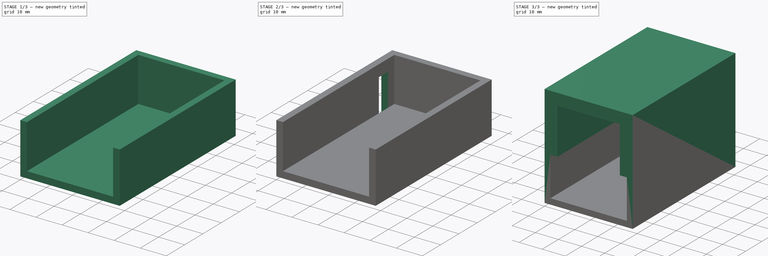
[diagram: build sequence overview — one tinted view per stage of 3, left to right]
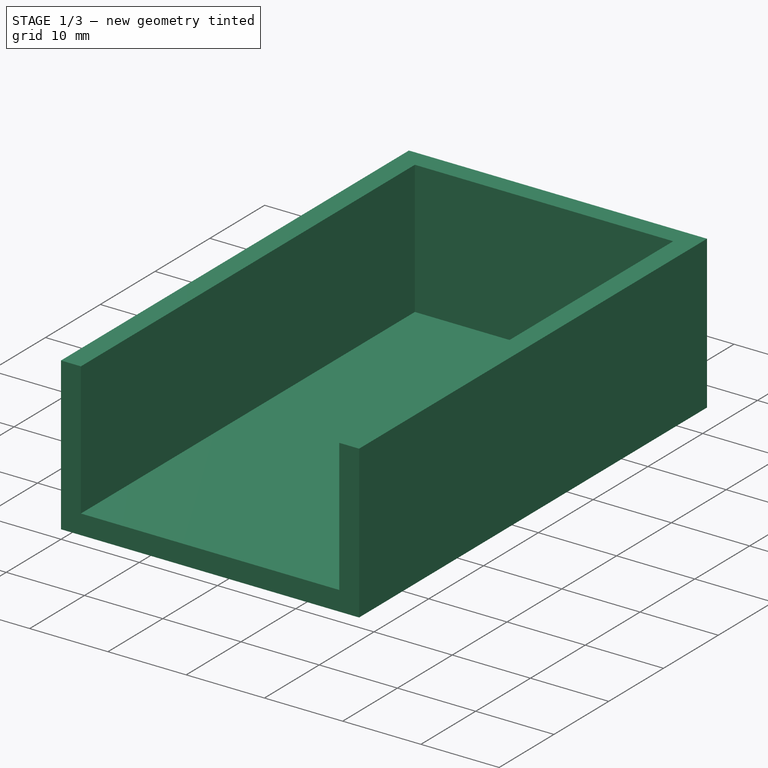
[diagram: stage 1 of 3 — iso view after this stage's code; geometry added in this stage tinted green]
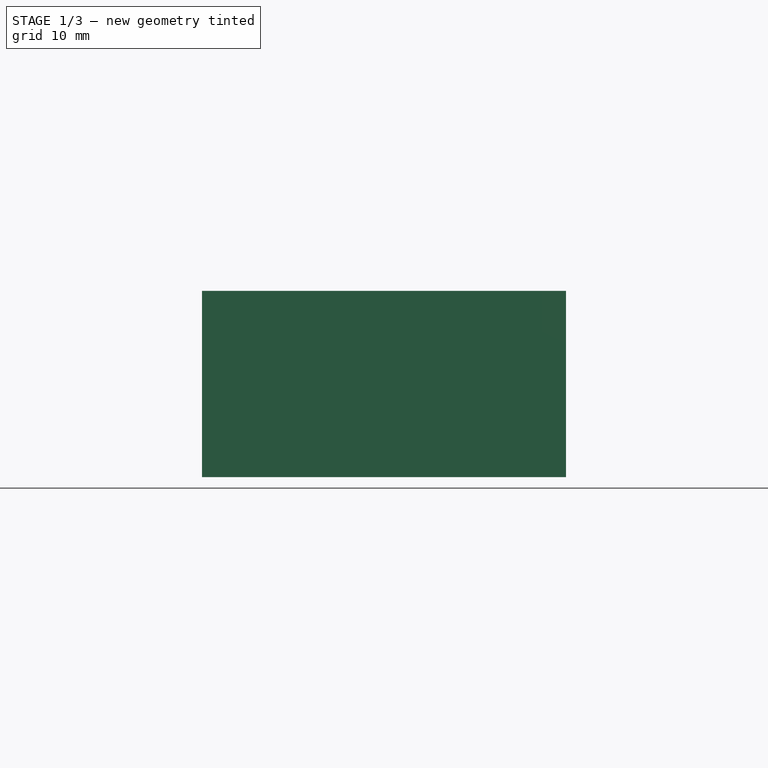
[diagram: stage 1 of 3 — front view after this stage's code; geometry added in this stage tinted green]
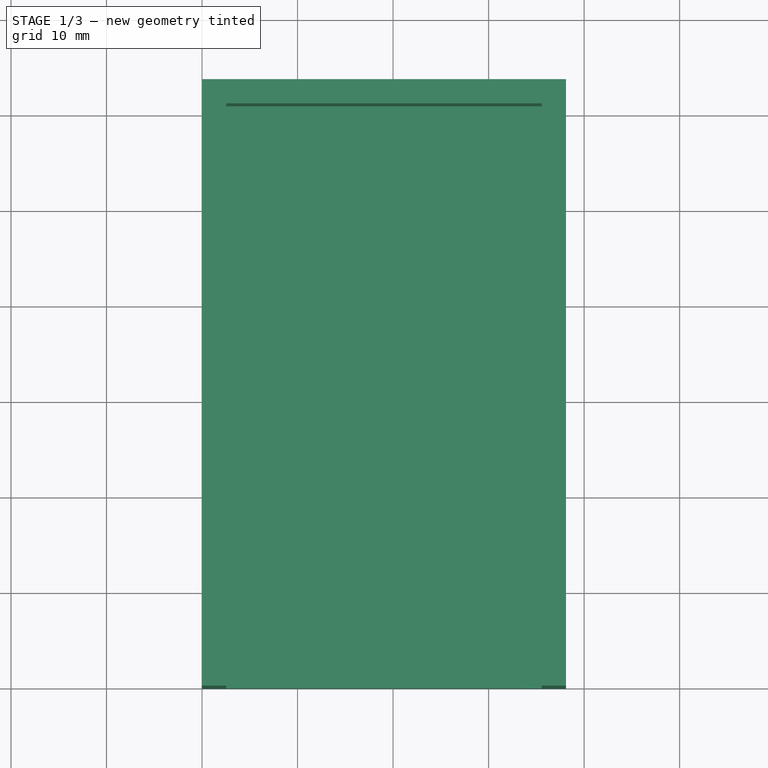
[diagram: stage 1 of 3 — top view after this stage's code; geometry added in this stage tinted green]
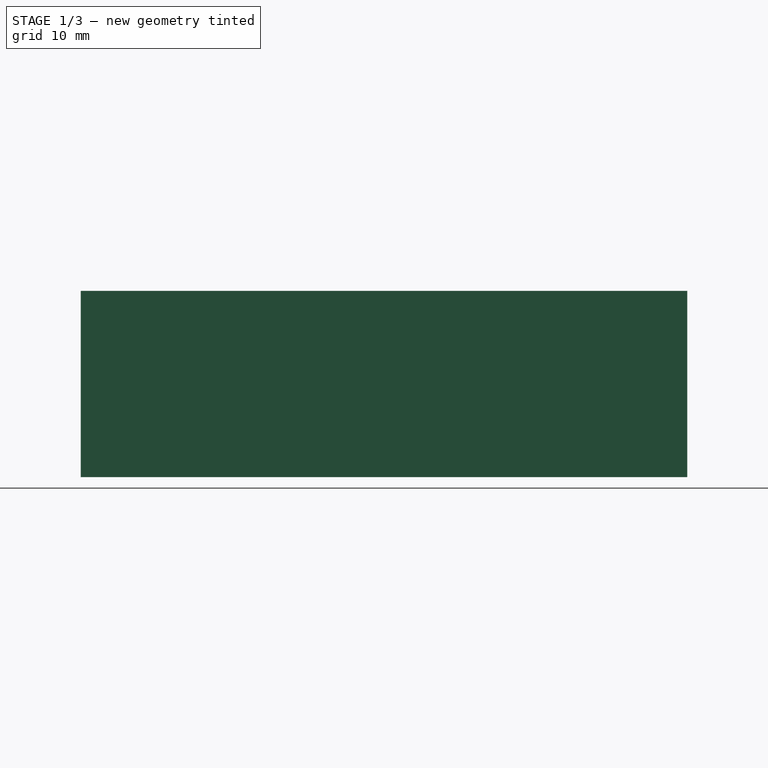
[diagram: stage 1 of 3 — right view after this stage's code; geometry added in this stage tinted green]
FCSTD DOCUMENT  (FreeCAD 1.0R39109 (Git))
Label: Battery Case
License: All rights reserved
LicenseURL: https://en.wikipedia.org/wiki/All_rights_reserved
objects: Sketcher::SketchObject×5, PartDesign::Pad×4, PartDesign::Pocket×1, PartDesign::Body×1
note: 26 computed .brp shape members not serialized (recipe doc carries the construction recipe); baked Part::Feature solids carry a one-line shape summary decoded from their .brp

FEATURE [Sketcher::SketchObject] Sketch
  ArcFitTolerance = 1e-06
  AttachmentSupport = -> [XY_Plane]
  FullyConstrained = true
  MakeInternals = false
  MapMode = 5
  sketch-geometry (4):
    g0: LineSegment StartX=0 StartY=0 StartZ=0 EndX=38.1 EndY=0 EndZ=0
    g1: LineSegment StartX=38.1 StartY=0 StartZ=0 EndX=38.1 EndY=63.5 EndZ=0
    g2: LineSegment StartX=38.1 StartY=63.5 StartZ=0 EndX=0 EndY=63.5 EndZ=0
    g3: LineSegment StartX=0 StartY=63.5 StartZ=0 EndX=0 EndY=0 EndZ=0
  constraints (11):
    c: Coincident(g0,g1)
    c: Coincident(g1,g2)
    c: Coincident(g2,g3)
    c: Coincident(g3,g0)
    c: Horizontal(g0)
    c: Horizontal(g2)
    c: Vertical(g1)
    c: Vertical(g3)
    c: Distance(g1,g3) = 38.1
    c: Distance(g0,g2) = 63.5
    c: Coincident(g0,g-1)
FEATURE [PartDesign::Pad] Pad
  Direction = (0,0,1)
  Length = 2.5
  Length2 = 10
  Profile = -> Sketch
  ReferenceAxis = -> Sketch [N_Axis]
  Refine = true
  Suppressed = false
  Type = 0
FEATURE [Sketcher::SketchObject] Sketch001
  ArcFitTolerance = 1e-06
  AttachmentSupport = -> [Pad]
  FullyConstrained = true
  MakeInternals = false
  MapMode = 5
  Placement = pos=(0,0,2.5) rot=(0,0,1;0rad)
  sketch-geometry (8):
    g0: LineSegment StartX=0 StartY=0 StartZ=0 EndX=0 EndY=63.5 EndZ=0
    g1: LineSegment StartX=0 StartY=63.5 StartZ=0 EndX=38.1 EndY=63.5 EndZ=0
    g2: LineSegment StartX=38.1 StartY=63.5 StartZ=0 EndX=38.1 EndY=0 EndZ=0
    g3: LineSegment StartX=38.1 StartY=0 StartZ=0 EndX=35.56 EndY=0 EndZ=0
    g4: LineSegment StartX=35.56 StartY=0 StartZ=0 EndX=35.56 EndY=60.96 EndZ=0
    g5: LineSegment StartX=35.56 StartY=60.96 StartZ=0 EndX=2.54 EndY=60.96 EndZ=0
    g6: LineSegment StartX=2.54 StartY=60.96 StartZ=0 EndX=2.54 EndY=0 EndZ=0
    g7: LineSegment StartX=2.54 StartY=0 StartZ=0 EndX=0 EndY=0 EndZ=0
  constraints (23):
    c: Distance(g0) = 63.5
    c: Coincident(g0,g-1)
    c: PointOnObject(g0,g-2)
    c: Distance(g1) = 38.1
    c: Coincident(g1,g0)
    c: Horizontal(g1)
    c: Coincident(g2,g1)
    c: PointOnObject(g2,g-1)
    c: Vertical(g2)
    c: Distance(g3) = 2.54
    c: Coincident(g3,g2)
    c: PointOnObject(g3,g-1)
    c: Distance(g4) = 60.96
    c: Coincident(g4,g3)
    c: Vertical(g4)
    c: Distance(g5) = 33.02
    c: Coincident(g5,g4)
    c: Horizontal(g5)
    c: Coincident(g6,g5)
    c: PointOnObject(g6,g-1)
    c: Vertical(g6)
    c: Coincident(g7,g6)
    c: Coincident(g7,g0)
FEATURE [PartDesign::Pad] Pad001
  BaseFeature = -> Pad
  Direction = (0,0,1)
  Length = 17
  Length2 = 10
  Profile = -> Sketch001
  ReferenceAxis = -> Sketch001 [N_Axis]
  Refine = true
  Suppressed = false
  Type = 0
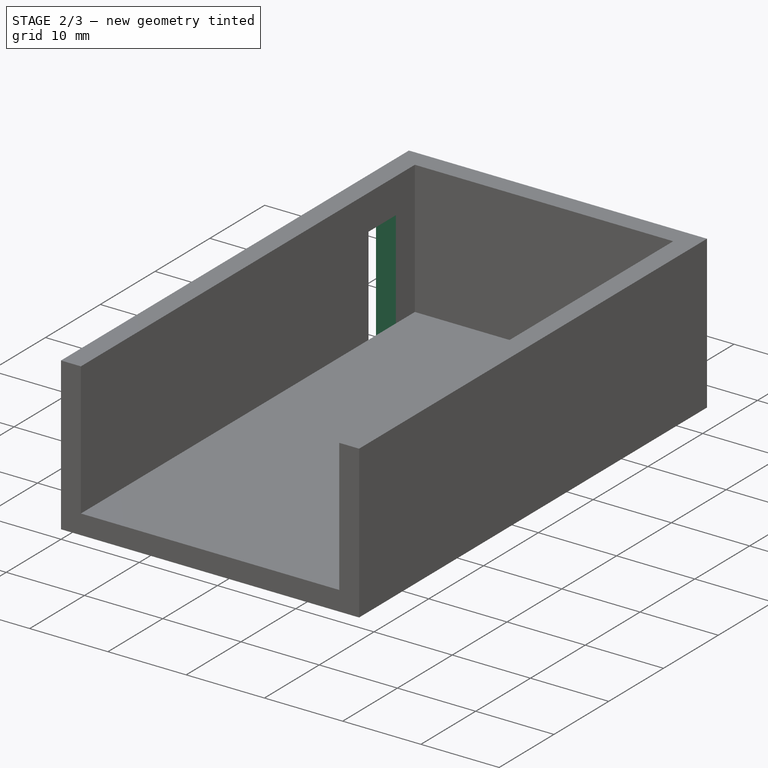
[diagram: stage 2 of 3 — iso view after this stage's code; geometry added in this stage tinted green]
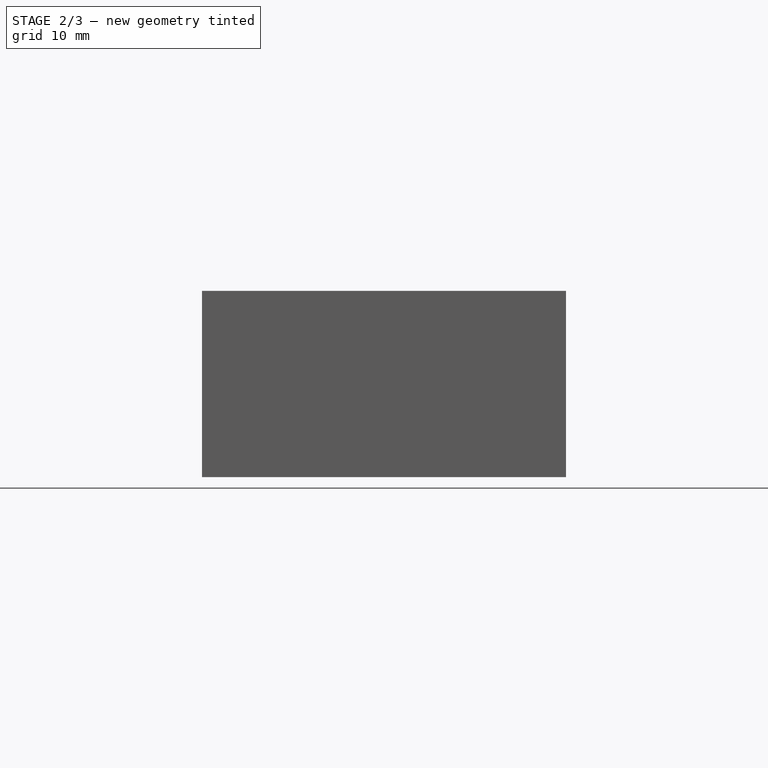
[diagram: stage 2 of 3 — front view after this stage's code; geometry added in this stage tinted green]
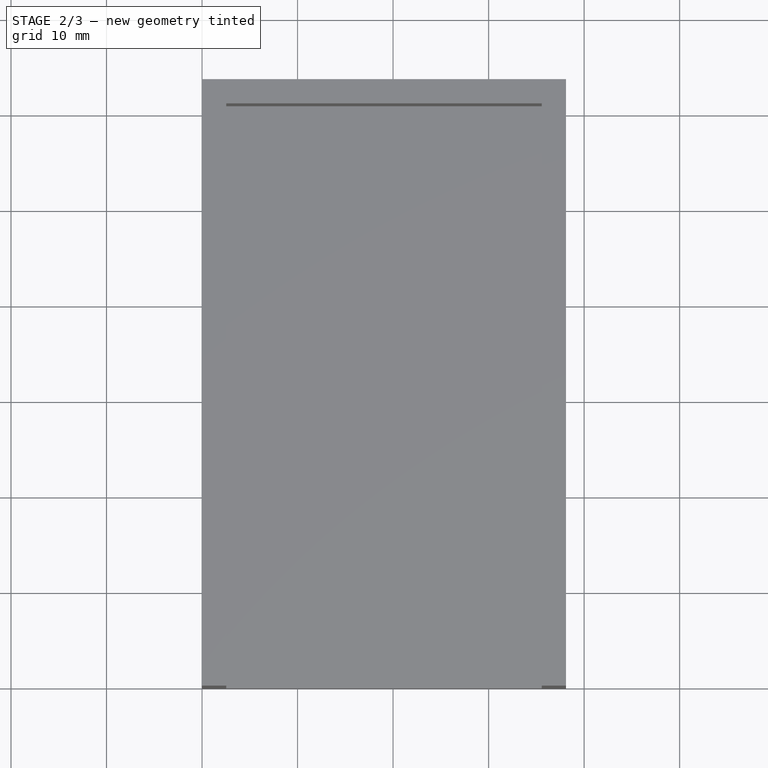
[diagram: stage 2 of 3 — top view after this stage's code; geometry added in this stage tinted green]
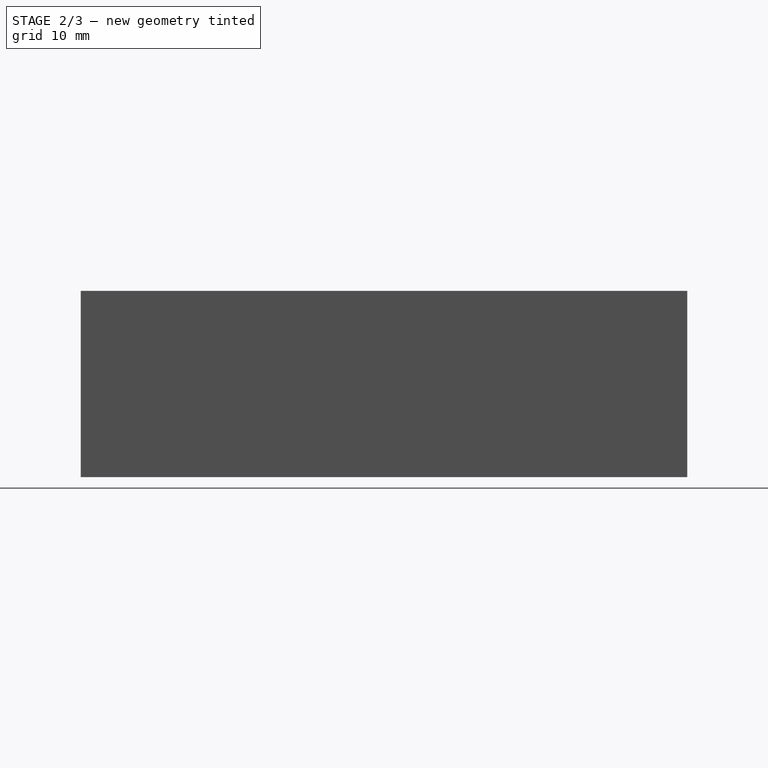
[diagram: stage 2 of 3 — right view after this stage's code; geometry added in this stage tinted green]
FEATURE [Sketcher::SketchObject] Sketch002
  ArcFitTolerance = 1e-06
  AttachmentSupport = -> [Pad001]
  FullyConstrained = true
  MakeInternals = false
  MapMode = 5
  Placement = pos=(0,0,0) rot=(0.57735,-0.57735,-0.57735;2.0944rad)
  sketch-geometry (4):
    g0: LineSegment StartX=-52.5 StartY=0 StartZ=0 EndX=-52.5 EndY=15 EndZ=0
    g1: LineSegment StartX=-52.5 StartY=15 StartZ=0 EndX=-57.5 EndY=15 EndZ=0
    g2: LineSegment StartX=-57.5 StartY=15 StartZ=0 EndX=-57.5 EndY=0 EndZ=0
    g3: LineSegment StartX=-57.5 StartY=0 StartZ=0 EndX=-52.5 EndY=0 EndZ=0
  constraints (12):
    c: Coincident(g0,g1)
    c: Coincident(g1,g2)
    c: Coincident(g2,g3)
    c: Coincident(g3,g0)
    c: Vertical(g0)
    c: Vertical(g2)
    c: Horizontal(g1)
    c: Horizontal(g3)
    c: PointOnObject(g0,g-1)
    c: Distance(g-2,g0) = 52.5
    c: DistanceX(g3,g3) = 5
    c: DistanceY(g0,g0) = 15
FEATURE [PartDesign::Pocket] Pocket
  BaseFeature = -> Pad001
  Direction = (1,0,0)
  Length = 2.54
  Length2 = 5
  Profile = -> Sketch002
  ReferenceAxis = -> Sketch002 [N_Axis]
  Refine = true
  Suppressed = false
  Type = 0
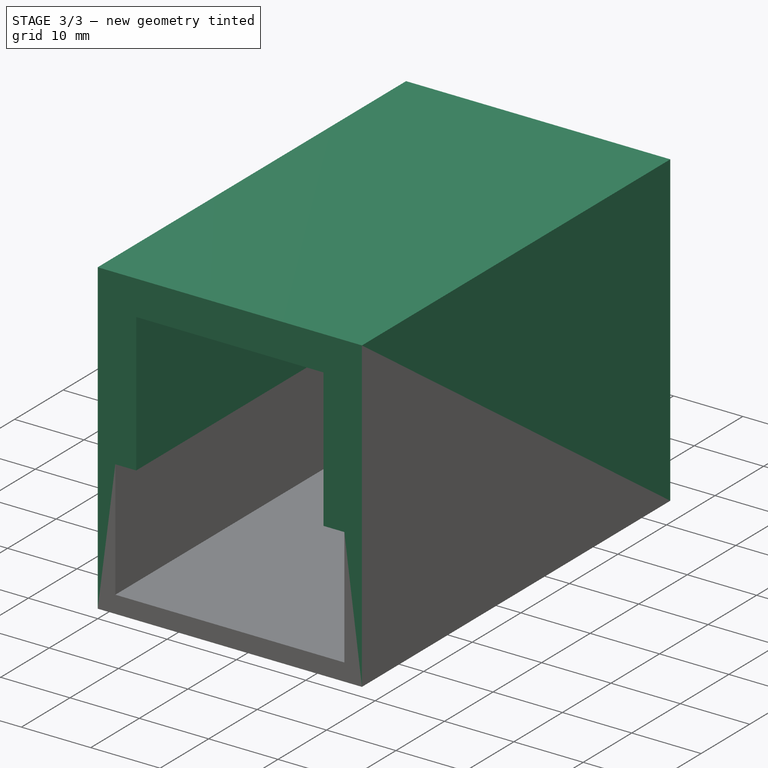
[diagram: stage 3 of 3 — iso view after this stage's code; geometry added in this stage tinted green]
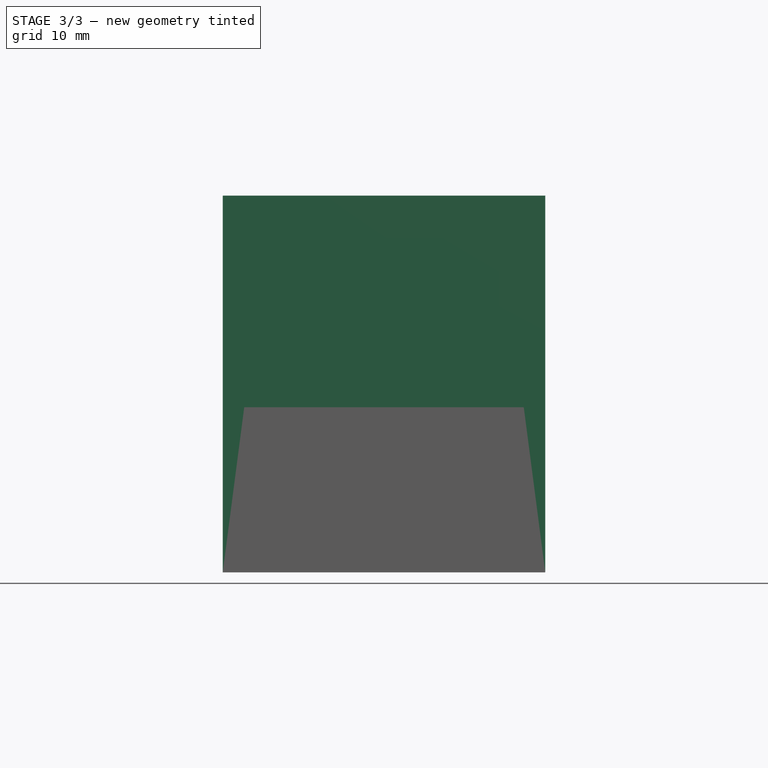
[diagram: stage 3 of 3 — front view after this stage's code; geometry added in this stage tinted green]
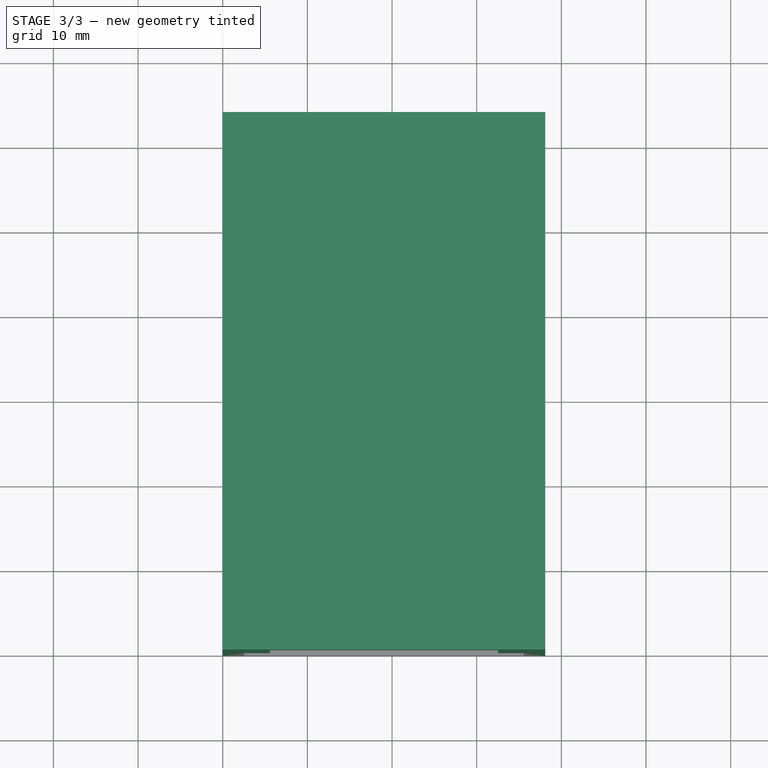
[diagram: stage 3 of 3 — top view after this stage's code; geometry added in this stage tinted green]
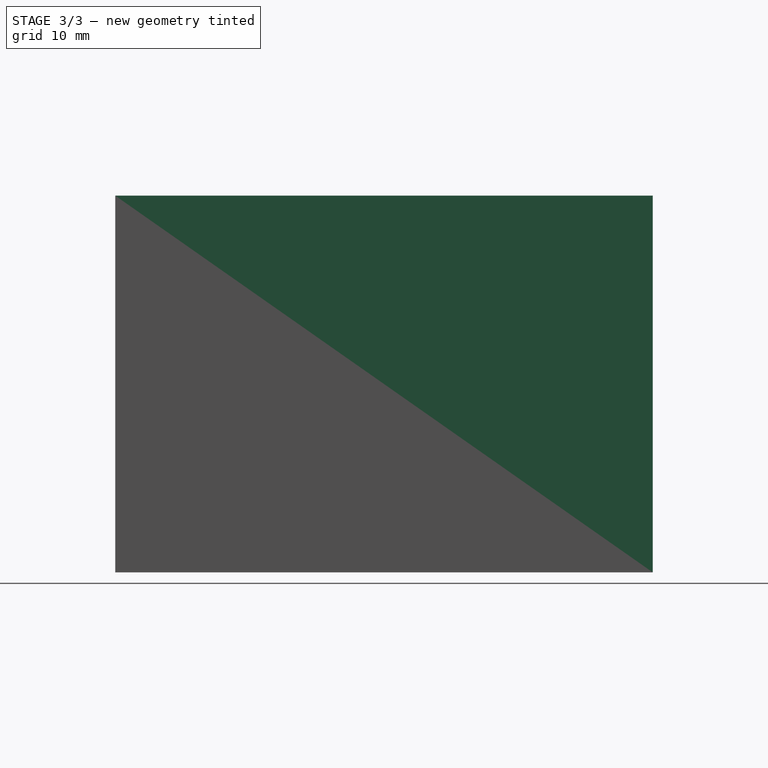
[diagram: stage 3 of 3 — right view after this stage's code; geometry added in this stage tinted green]
FEATURE [Sketcher::SketchObject] Sketch003
  ArcFitTolerance = 1e-06
  AttachmentSupport = -> [Pocket]
  FullyConstrained = true
  MakeInternals = false
  MapMode = 5
  Placement = pos=(0,0,19.5) rot=(0,0,1;0rad)
  sketch-geometry (8):
    g0: LineSegment StartX=0 StartY=0 StartZ=0 EndX=5.55 EndY=0 EndZ=0
    g1: LineSegment StartX=5.55 StartY=0 StartZ=0 EndX=5.55 EndY=55.5 EndZ=0
    g2: LineSegment StartX=5.55 StartY=55.5 StartZ=0 EndX=32.55 EndY=55.5 EndZ=0
    g3: LineSegment StartX=32.55 StartY=55.5 StartZ=0 EndX=32.55 EndY=0 EndZ=0
    g4: LineSegment StartX=32.55 StartY=0 StartZ=0 EndX=38.1 EndY=0 EndZ=0
    g5: LineSegment StartX=38.1 StartY=0 StartZ=0 EndX=38.1 EndY=63.5 EndZ=0
    g6: LineSegment StartX=38.1 StartY=63.5 StartZ=0 EndX=0 EndY=63.5 EndZ=0
    g7: LineSegment StartX=0 StartY=63.5 StartZ=0 EndX=0 EndY=0 EndZ=0
  constraints (23):
    c: Distance(g0) = 5.55
    c: Coincident(g0,g-1)
    c: PointOnObject(g0,g-1)
    c: Distance(g1) = 55.5
    c: Coincident(g1,g0)
    c: Vertical(g1)
    c: Distance(g2) = 27
    c: Coincident(g2,g1)
    c: Horizontal(g2)
    c: Coincident(g3,g2)
    c: PointOnObject(g3,g-1)
    c: Vertical(g3)
    c: Distance(g4) = 5.55
    c: Coincident(g4,g3)
    c: PointOnObject(g4,g-1)
    c: Distance(g5) = 63.5
    c: Coincident(g5,g4)
    c: Vertical(g5)
    c: Coincident(g6,g5)
    c: PointOnObject(g6,g-2)
    c: Horizontal(g6)
    c: Coincident(g7,g6)
    c: Coincident(g7,g0)
FEATURE [PartDesign::Pad] Pad002
  BaseFeature = -> Pocket
  Direction = (0,0,1)
  Length = 20
  Length2 = 10
  Profile = -> Sketch003
  ReferenceAxis = -> Sketch003 [N_Axis]
  Refine = true
  Suppressed = false
  Type = 0
FEATURE [Sketcher::SketchObject] Sketch004
  ArcFitTolerance = 1e-06
  AttachmentSupport = -> [Pad002]
  FullyConstrained = true
  MakeInternals = false
  MapMode = 5
  Placement = pos=(0,0,39.5) rot=(0,0,1;0rad)
  sketch-geometry (4):
    g0: LineSegment StartX=0 StartY=0 StartZ=0 EndX=38.1 EndY=0 EndZ=0
    g1: LineSegment StartX=38.1 StartY=0 StartZ=0 EndX=38.1 EndY=63.5 EndZ=0
    g2: LineSegment StartX=38.1 StartY=63.5 StartZ=0 EndX=0 EndY=63.5 EndZ=0
    g3: LineSegment StartX=0 StartY=63.5 StartZ=0 EndX=0 EndY=0 EndZ=0
  constraints (11):
    c: Coincident(g0,g1)
    c: Coincident(g1,g2)
    c: Coincident(g2,g3)
    c: Coincident(g3,g0)
    c: Horizontal(g0)
    c: Horizontal(g2)
    c: Vertical(g1)
    c: Vertical(g3)
    c: Distance(g1,g3) = 38.1
    c: Distance(g0,g2) = 63.5
    c: Coincident(g0,g-1)
FEATURE [PartDesign::Pad] Pad003
  BaseFeature = -> Pad002
  Direction = (0,0,1)
  Length = 5
  Length2 = 10
  Profile = -> Sketch004
  ReferenceAxis = -> Sketch004 [N_Axis]
  Refine = true
  Suppressed = false
  Type = 0
FEATURE [PartDesign::Body] Body
  AllowCompound = false
  Group = -> [Sketch,Pad,Sketch001,Pad001,Sketch002,Pocket,Sketch003,Pad002,Sketch004,Pad003]
  Origin = -> Origin
  Tip = -> Pad003
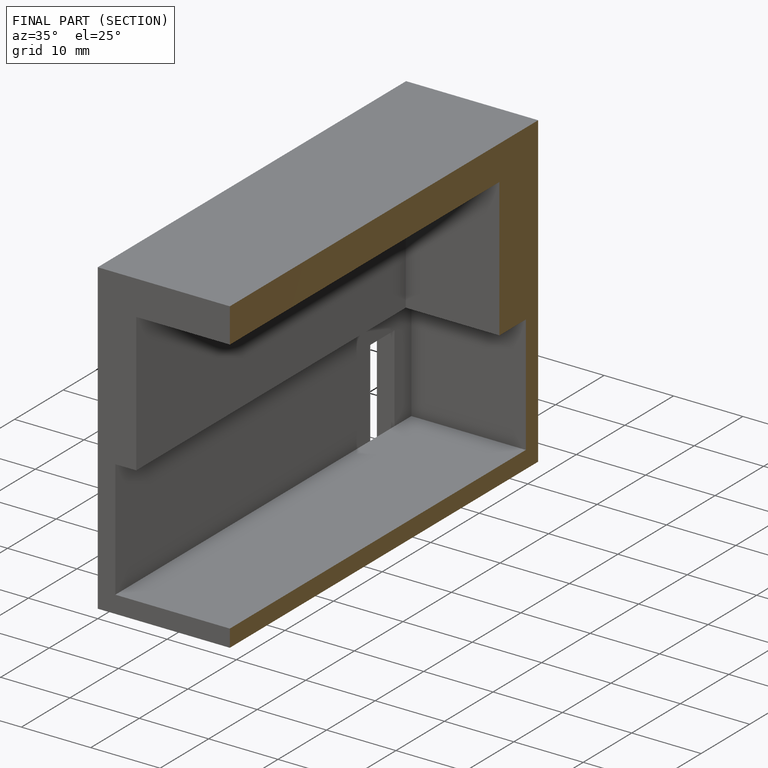
[diagram: finished part — half-section view (interior)]
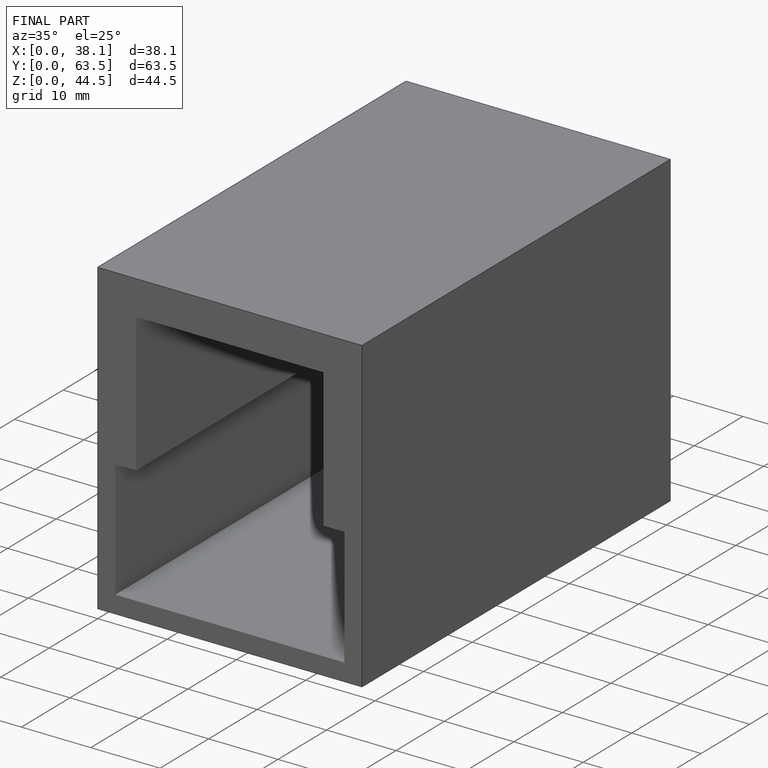
[diagram: finished part — iso view with bounding-box wireframe]
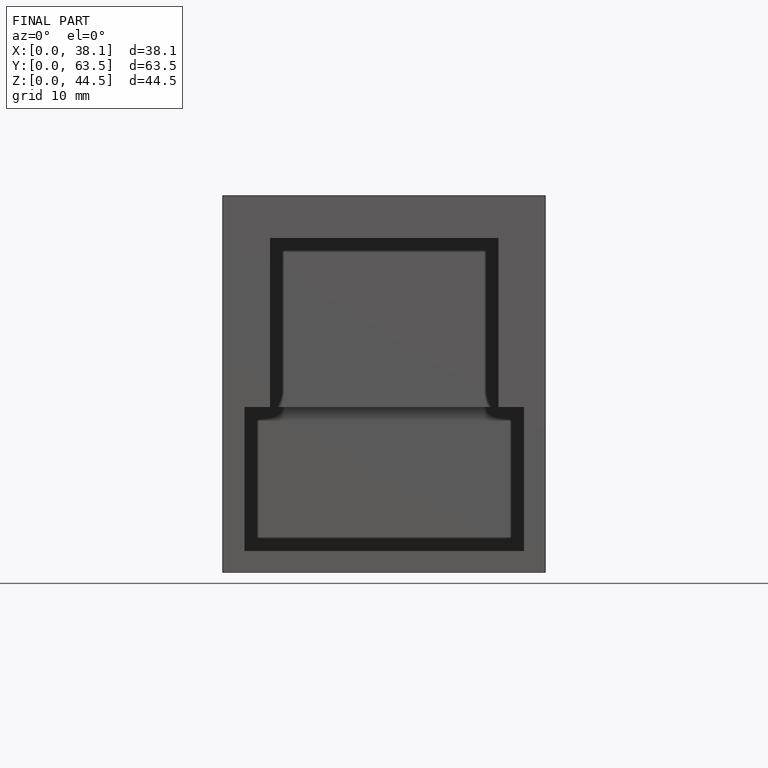
[diagram: finished part — front view with bounding-box wireframe]
